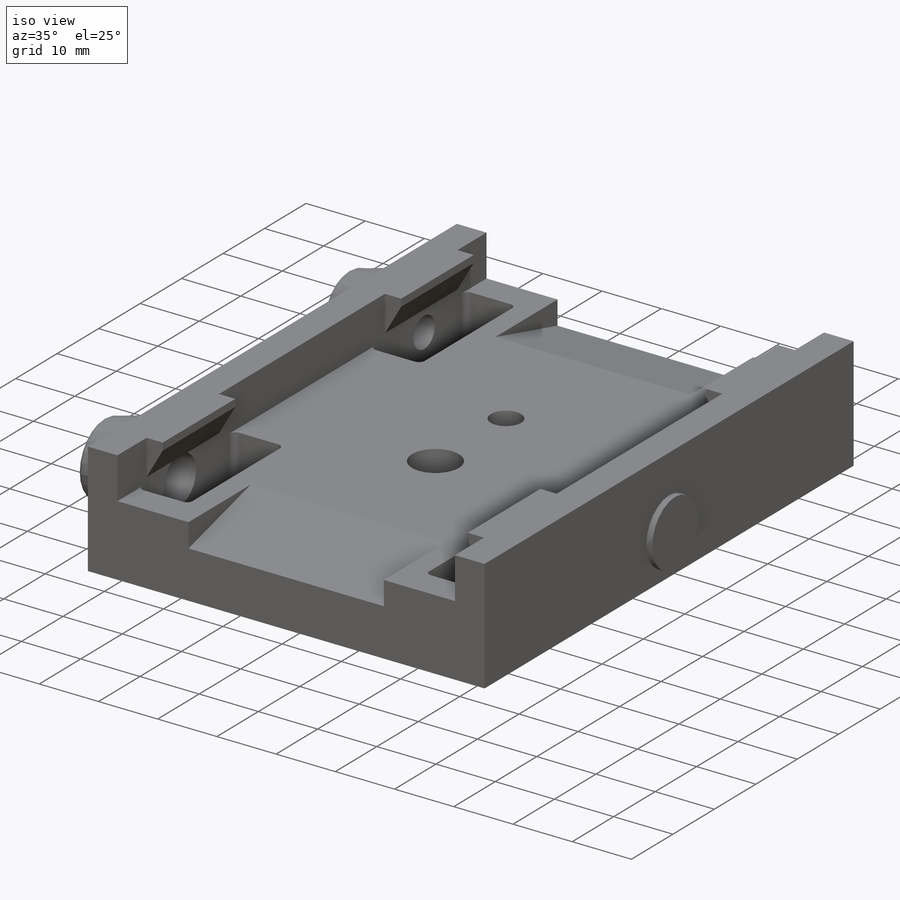
[diagram: iso view]
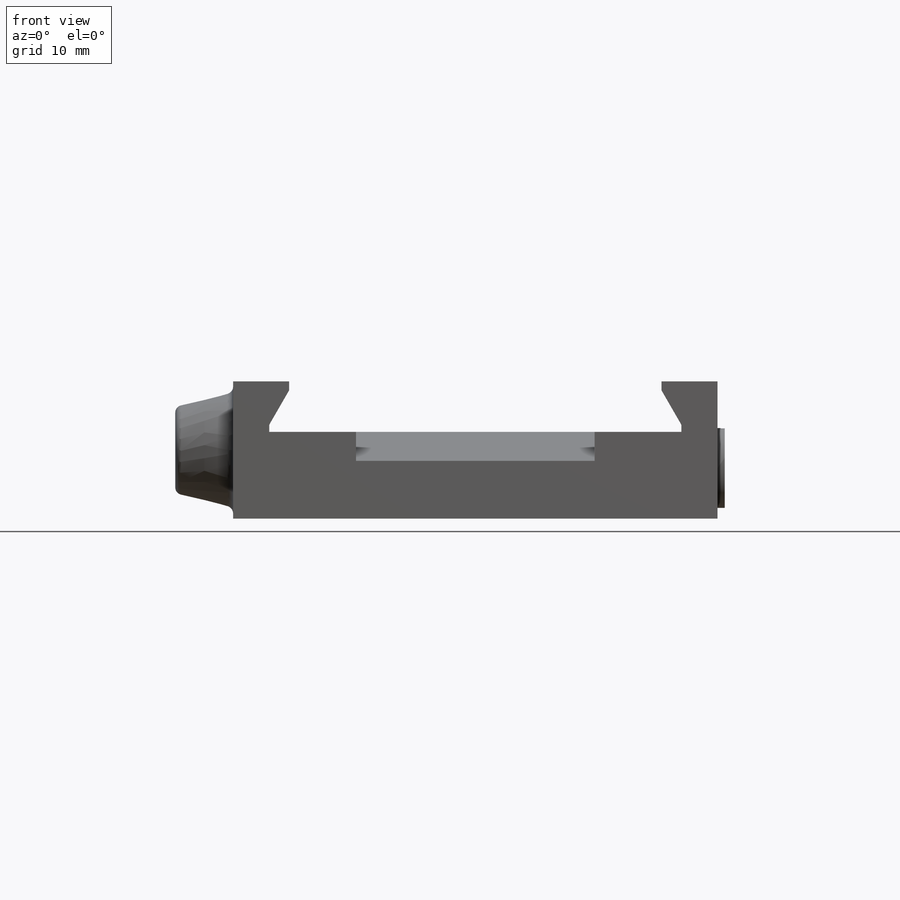
[diagram: front view]
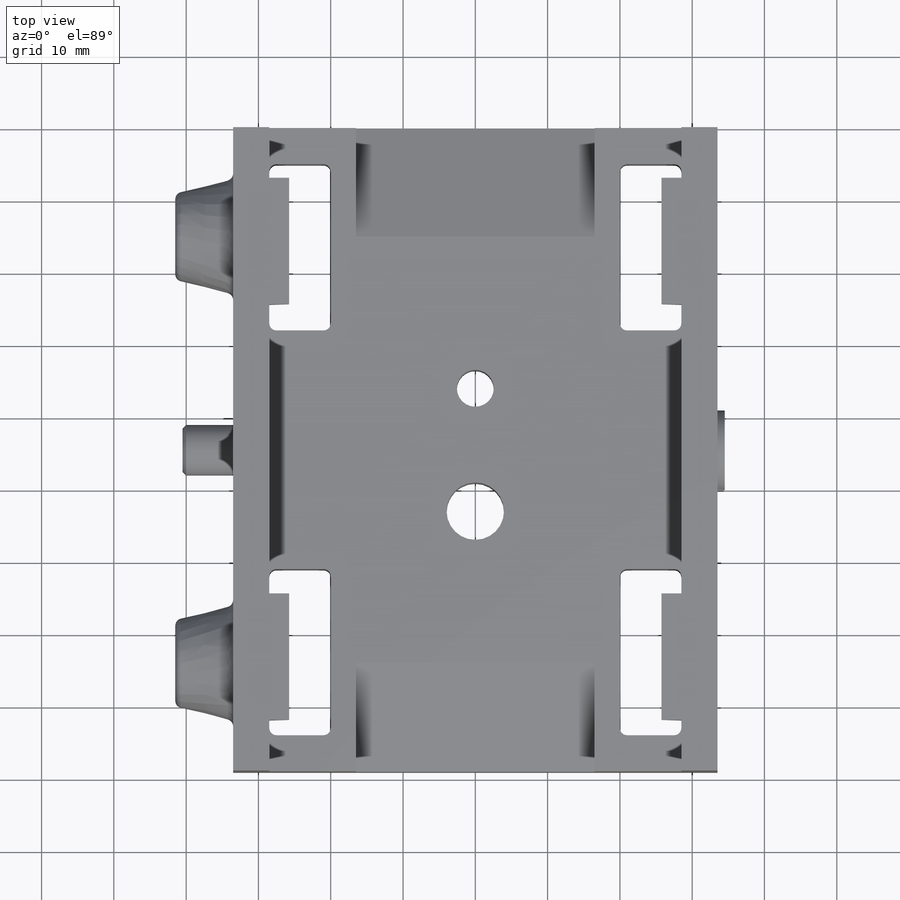
[diagram: top view]
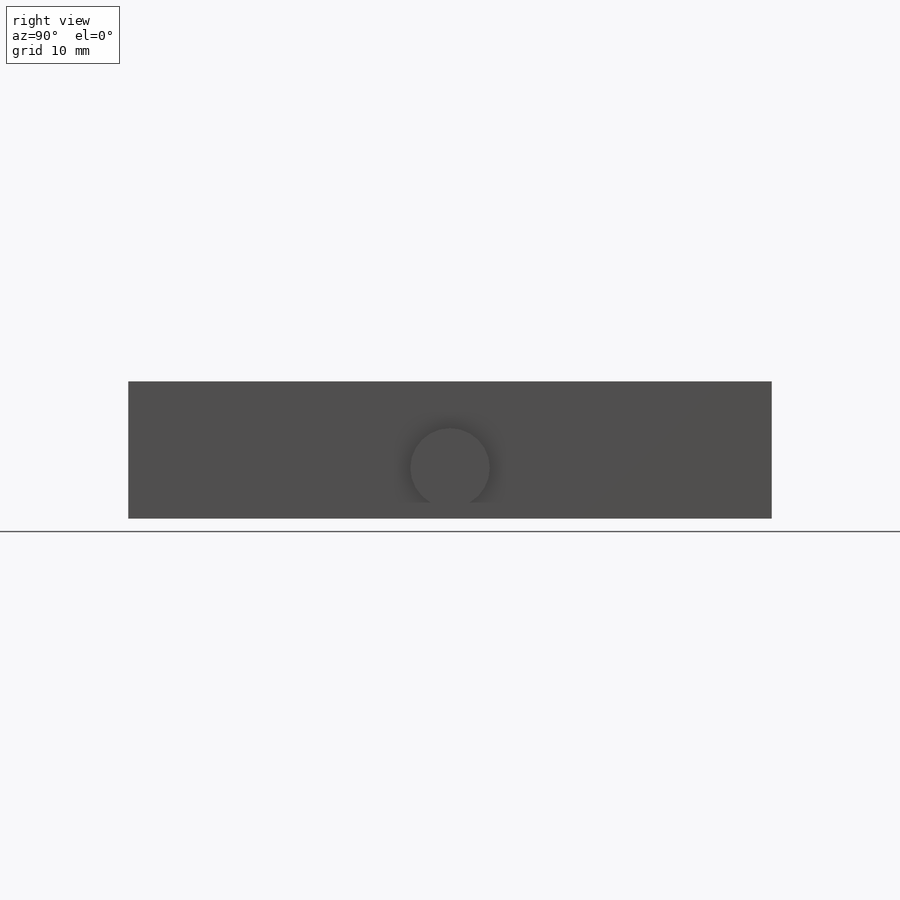
[diagram: right view]
SOLIDWORKS PART (.sldprt)
format: sldprt  version: not decoded by parser v0  size: 585,216 bytes
history: native  units: mm
features: sketch x19, plane x6, cut_extrude x4, hole x4, thread x4, extrude x3, chamfer x2, material x1, fillet x1, mirror x1 (+8 scaffold rows collapsed)
feature tree (53):
  scaffold x8  (default folders/planes/origin — collapsed)
  material  "Материал <не указан>"
  plane  "Спереди"
  plane  "Сверху"
  plane  "Справа"
  sketch  "Эскиз1"  dims[D1=67.0mm D2=19.0mm]
  extrude  "Бобышка-Вытянуть1"  Depth=89mm
  sketch  "Эскиз2"  dims[c1.D1=57.0mm c1.D2=12.0mm c1.D3=1.0mm c1.D4=1.0mm c1.D5=1.0mm c1.D6=1.0mm c1.D7=~6.210004mm c2.D7=60.0deg c2.D8=~3.242414mm c3.D8=60.0deg c3.D9=51.5mm c3.D3=1.0mm c3.D4=1.0mm]
  cut_extrude  "Вырез-Вытянуть1"  [1 undecoded]
  sketch  "Эскиз3"  dims[D1=7.0mm D2=7.0mm D3=40.0mm D4=57.0mm]
  cut_extrude  "Вырез-Вытянуть2"  [1 undecoded]
  sketch  "Эскиз4"  dims[D1=8.5mm D2=23.0mm D3=5.0mm]
  cut_extrude  "Вырез-Вытянуть3"  [1 undecoded]
  sketch  "Эскиз5"  dims[D1=36.0mm D2=36.0mm]
  hole  "Отверстие обработанное метчиком 1/4-201"  [1 undecoded]
  sketch  "Эскиз7"
  sketch  "Эскиз6"  dims[hole-wizard template sketch: 60 standard entries collapsed; hole parameters kept: c18.Глубина проходного сверла=19.0mm]
  thread  "Отверстие резьбы1"  Diameter=6.35mm  [1 undecoded]
  hole  "Отверстие обработанное метчиком 3/8-161"  [1 undecoded]
  sketch  "Эскиз9"
  sketch  "Эскиз8"  dims[hole-wizard template sketch: 46 standard entries collapsed; hole parameters kept: c15.Диаметр сверла=7.9375mm c15.Глубина сверла=26.99mm c15.D3=~14.816244mm c15.Угол заточки сверла=118.0deg]
  thread  "Отверстие резьбы2"  Diameter=12mm  [1 undecoded]
  fillet  "Скругление1"  Radius=1mm
  plane  "Плоскость1"  Offset=8mm
  sketch  "Эскиз10"  dims[D1=16.0mm D2=16.0mm D3=15.0mm D4=15.0mm]
  sketch  "Эскиз11"  dims[D1=12.0mm D2=12.0mm]
  plane  "Плоскость2"  Offset=44.5mm
  mirror  "Зеркальное отражение1"
  hole  "Отверстие обработанное метчиком 3/8-162"  [1 undecoded]
  sketch  "Трехмерный эскиз1"
  sketch  "Эскиз14"  dims[hole-wizard template sketch: 46 standard entries collapsed; hole parameters kept: c15.Диаметр сверла=7.9375mm c15.Глубина сверла=12.999mm c15.D3=~14.816244mm c15.Угол заточки сверла=118.0deg]
  thread  "Отверстие резьбы3"  Diameter=13mm  [1 undecoded]
  hole  "Отверстие обработанное метчиком 1/4-202"  [1 undecoded]
  sketch  "Эскиз16"
  sketch  "Эскиз15"  dims[hole-wizard template sketch: 47 standard entries collapsed; hole parameters kept: c15.Глубина сверла=12.999mm c15.D3=~14.816244mm c15.Угол заточки сверла=118.0deg]
  thread  "Отверстие резьбы4"  Diameter=12.7mm  [1 undecoded]
  sketch  "Эскиз17"  dims[D2=7.0mm D1=7.0mm]
  extrude  "Бобышка-Вытянуть2"  Depth=7mm
  sketch  "Скругление2"  dims[D1=1.0mm]
  chamfer  "Фаска1"  Distance=0.5mm Angle=45deg
  plane  "Плоскость3"  Offset=17mm
  sketch  "Эскиз18"  dims[D1=15.0mm D2=4.0mm D3=4.0mm]
  cut_extrude  "Вырез-Вытянуть4"  Depth=33mm
  chamfer  "Зеркальное отражение2"  [1 undecoded]
  sketch  "Эскиз19"  dims[D2=11.0mm D1=7.0mm]
  extrude  "Бобышка-Вытянуть3"  Depth=1mm
decode coverage: 25 of 38 modeling features carry decoded parameters
note: ~ marks probable driven/reference dimensions
note: 12 parameter values undecoded
summary: no parameter record found for 8 features
note: suppression state not decoded; provenance and decode notes live in map.json
